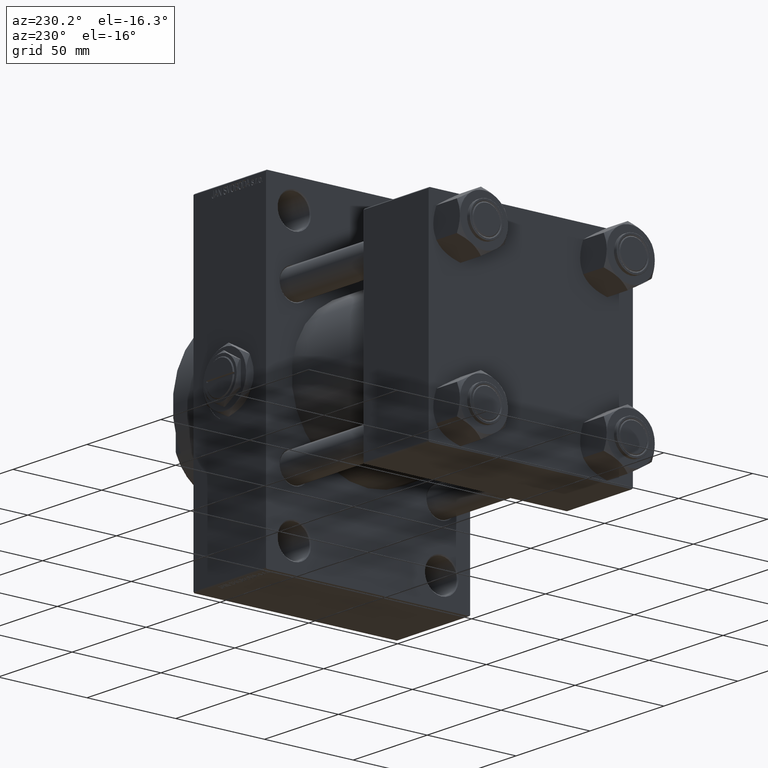
[diagram: clean part render]
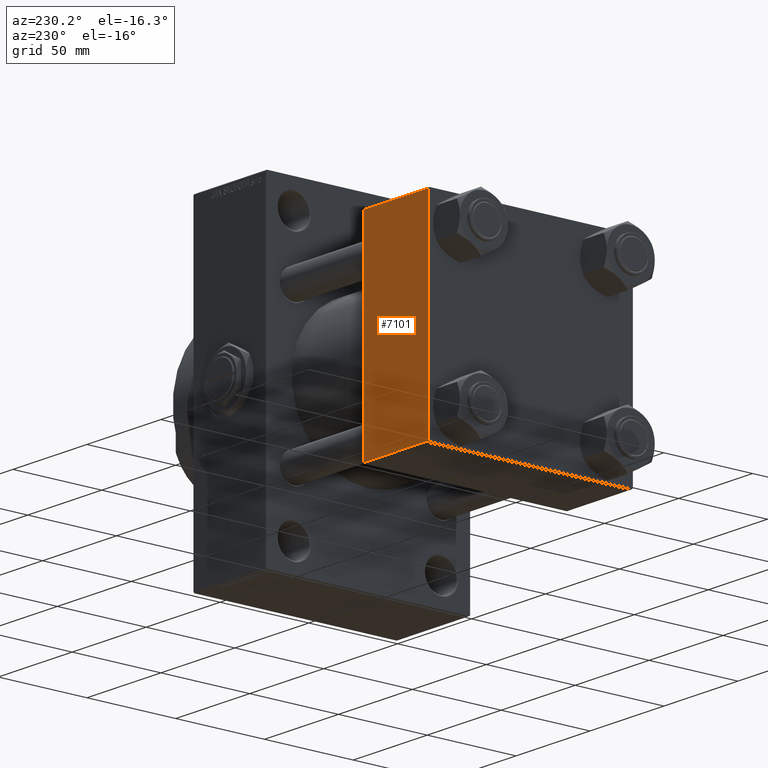
[diagram: same view with one face highlighted and labeled with its STEP entity id]
A machine part, auxiliary view. The second image highlights one B-rep face of the part: STEP entity #7101.
In plain terms, the highlighted planar face has unit normal (0, 1, 0).
Its self-contained STEP definition (entity closure, byte-faithful):
#1772 = LINE ( 'NONE', #9285, #23718 ) ;
#2242 = FACE_OUTER_BOUND ( 'NONE', #42441, .T. ) ;
#2619 = ORIENTED_EDGE ( 'NONE', *, *, #44828, .T. ) ;
#3866 = VERTEX_POINT ( 'NONE', #23259 ) ;
#5405 = CARTESIAN_POINT ( 'NONE',  ( 44.00000000000000000, 57.50000000000000000, -56.99999999999997158 ) ) ;
#5765 = ORIENTED_EDGE ( 'NONE', *, *, #31880, .T. ) ;
#7101 = ADVANCED_FACE ( 'NONE', ( #2242 ), #13255, .T. ) ;
#7867 = DIRECTION ( 'NONE',  ( 1.000000000000000000, 0.000000000000000000, 0.000000000000000000 ) ) ;
#9285 = CARTESIAN_POINT ( 'NONE',  ( 0.000000000000000000, 57.50000000000000000, 57.50000000000001421 ) ) ;
#9499 = DIRECTION ( 'NONE',  ( -0.000000000000000000, 1.000000000000000000, 0.000000000000000000 ) ) ;
#9813 = VECTOR ( 'NONE', #27358, 1000.000000000000000 ) ;
#11127 = CARTESIAN_POINT ( 'NONE',  ( 44.00000000000000000, 57.50000000000000000, 57.50000000000001421 ) ) ;
#13255 = PLANE ( 'NONE',  #22796 ) ;
#15612 = LINE ( 'NONE', #11127, #9813 ) ;
#16306 = LINE ( 'NONE', #31560, #25225 ) ;
#16721 = CARTESIAN_POINT ( 'NONE',  ( 44.00000000000000000, 57.50000000000000000, 57.00000000000004263 ) ) ;
#17046 = DIRECTION ( 'NONE',  ( -1.000000000000000000, 0.000000000000000000, 0.000000000000000000 ) ) ;
#19611 = LINE ( 'NONE', #46386, #41977 ) ;
#19893 = VERTEX_POINT ( 'NONE', #16721 ) ;
#22796 = AXIS2_PLACEMENT_3D ( 'NONE', #43766, #9499, #40261 ) ;
#23259 = CARTESIAN_POINT ( 'NONE',  ( 0.000000000000000000, 57.50000000000000000, 57.00000000000004263 ) ) ;
#23718 = VECTOR ( 'NONE', #24566, 1000.000000000000000 ) ;
#24566 = DIRECTION ( 'NONE',  ( 0.000000000000000000, 0.000000000000000000, -1.000000000000000000 ) ) ;
#24605 = VERTEX_POINT ( 'NONE', #32283 ) ;
#25225 = VECTOR ( 'NONE', #17046, 1000.000000000000000 ) ;
#26157 = EDGE_CURVE ( 'NONE', #19893, #40396, #15612, .T. ) ;
#27358 = DIRECTION ( 'NONE',  ( 0.000000000000000000, 0.000000000000000000, -1.000000000000000000 ) ) ;
#31101 = ORIENTED_EDGE ( 'NONE', *, *, #48081, .F. ) ;
#31560 = CARTESIAN_POINT ( 'NONE',  ( 44.00000000000000000, 57.50000000000000000, -57.00000000000000000 ) ) ;
#31880 = EDGE_CURVE ( 'NONE', #3866, #19893, #19611, .T. ) ;
#32283 = CARTESIAN_POINT ( 'NONE',  ( 0.000000000000000000, 57.50000000000000000, -56.99999999999997158 ) ) ;
#40261 = DIRECTION ( 'NONE',  ( 0.000000000000000000, -0.000000000000000000, 1.000000000000000000 ) ) ;
#40396 = VERTEX_POINT ( 'NONE', #5405 ) ;
#41159 = ORIENTED_EDGE ( 'NONE', *, *, #26157, .T. ) ;
#41977 = VECTOR ( 'NONE', #7867, 1000.000000000000000 ) ;
#42441 = EDGE_LOOP ( 'NONE', ( #41159, #2619, #31101, #5765 ) ) ;
#43766 = CARTESIAN_POINT ( 'NONE',  ( 44.00000000000000000, 57.50000000000000000, 57.50000000000001421 ) ) ;
#44828 = EDGE_CURVE ( 'NONE', #40396, #24605, #16306, .T. ) ;
#46386 = CARTESIAN_POINT ( 'NONE',  ( 44.00000000000000000, 57.50000000000000000, 57.00000000000004263 ) ) ;
#48081 = EDGE_CURVE ( 'NONE', #3866, #24605, #1772, .T. ) ;